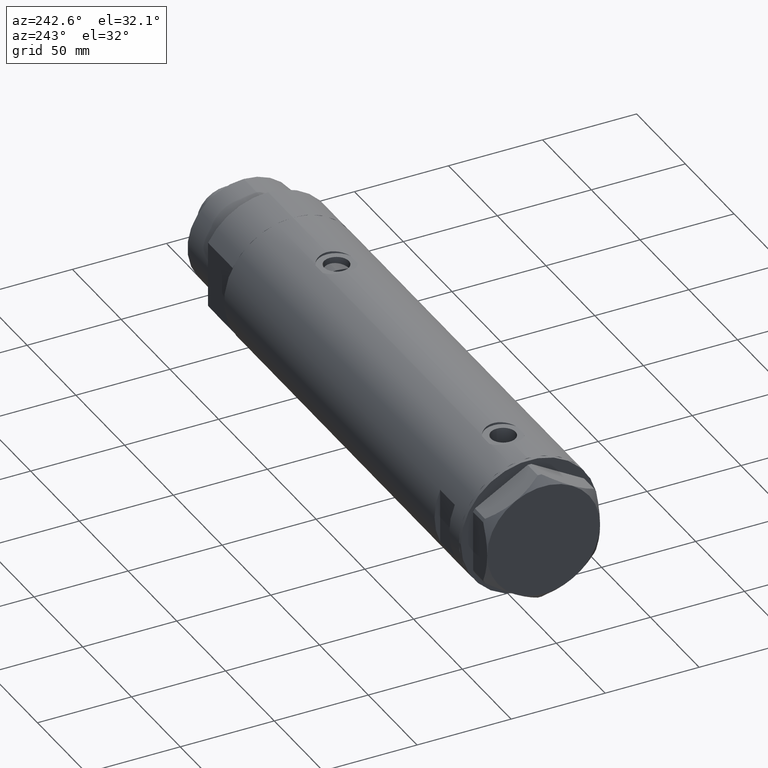
[diagram: clean part render]
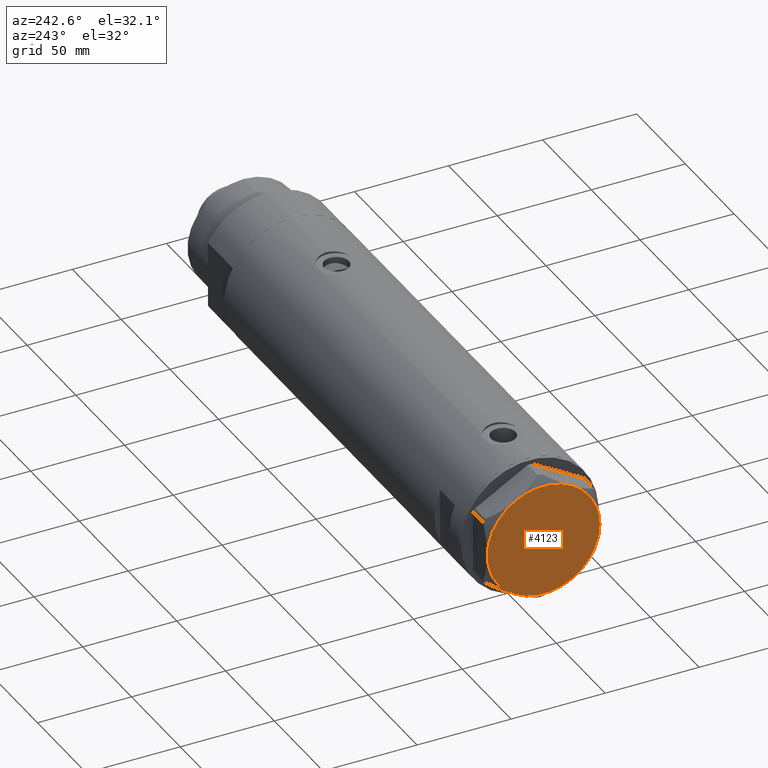
[diagram: same view with one face highlighted and labeled with its STEP entity id]
A machine part, auxiliary view. The second image highlights one B-rep face of the part: STEP entity #4123.
In plain terms, the highlighted planar face has unit normal (-1, -0, 0).
Its self-contained STEP definition (entity closure, byte-faithful):
#18 = CARTESIAN_POINT ( 'NONE',  ( 14.99999999999999467, 25.98076211353316367, 14.50000000000000000 ) ) ;
#37 = EDGE_CURVE ( 'NONE', #3228, #3449, #1792, .T. ) ;
#70 = AXIS2_PLACEMENT_3D ( 'NONE', #2125, #209, #416 ) ;
#190 = DIRECTION ( 'NONE',  ( 0.000000000000000000, 0.000000000000000000, 1.000000000000000000 ) ) ;
#209 = DIRECTION ( 'NONE',  ( 0.000000000000000000, 0.000000000000000000, 1.000000000000000000 ) ) ;
#416 = DIRECTION ( 'NONE',  ( 1.000000000000000000, 0.000000000000000000, 0.000000000000000000 ) ) ;
#419 = CARTESIAN_POINT ( 'NONE',  ( 0.000000000000000000, 0.000000000000000000, 14.50000000000000000 ) ) ;
#452 = CARTESIAN_POINT ( 'NONE',  ( 14.99999999999998757, -25.98076211353316722, 14.50000000000000000 ) ) ;
#499 = DIRECTION ( 'NONE',  ( 0.000000000000000000, 0.000000000000000000, 1.000000000000000000 ) ) ;
#518 = CARTESIAN_POINT ( 'NONE',  ( 0.000000000000000000, 0.000000000000000000, 14.50000000000000000 ) ) ;
#540 = DIRECTION ( 'NONE',  ( 1.000000000000000000, 0.000000000000000000, 0.000000000000000000 ) ) ;
#572 = CARTESIAN_POINT ( 'NONE',  ( 0.000000000000000000, 0.000000000000000000, 14.50000000000000000 ) ) ;
#675 = CARTESIAN_POINT ( 'NONE',  ( -14.99999999999999645, -25.98076211353316367, 14.50000000000000000 ) ) ;
#907 = DIRECTION ( 'NONE',  ( 1.000000000000000000, 0.000000000000000000, 0.000000000000000000 ) ) ;
#928 = CIRCLE ( 'NONE', #3250, 30.00000000000000000 ) ;
#989 = EDGE_LOOP ( 'NONE', ( #2636, #2047, #1542, #3466, #4019, #1296 ) ) ;
#1296 = ORIENTED_EDGE ( 'NONE', *, *, #3921, .T. ) ;
#1328 = VERTEX_POINT ( 'NONE', #4134 ) ;
#1451 = FACE_OUTER_BOUND ( 'NONE', #989, .T. ) ;
#1542 = ORIENTED_EDGE ( 'NONE', *, *, #37, .T. ) ;
#1735 = DIRECTION ( 'NONE',  ( 1.000000000000000000, 0.000000000000000000, 0.000000000000000000 ) ) ;
#1750 = DIRECTION ( 'NONE',  ( 1.000000000000000000, 0.000000000000000000, -0.000000000000000000 ) ) ;
#1792 = CIRCLE ( 'NONE', #4234, 30.00000000000000000 ) ;
#1919 = EDGE_CURVE ( 'NONE', #4265, #2450, #3025, .T. ) ;
#1943 = CIRCLE ( 'NONE', #2599, 30.00000000000000000 ) ;
#2047 = ORIENTED_EDGE ( 'NONE', *, *, #4007, .T. ) ;
#2125 = CARTESIAN_POINT ( 'NONE',  ( 0.000000000000000000, 0.000000000000000000, 14.50000000000000000 ) ) ;
#2341 = DIRECTION ( 'NONE',  ( 0.000000000000000000, 0.000000000000000000, 1.000000000000000000 ) ) ;
#2434 = DIRECTION ( 'NONE',  ( 0.000000000000000000, 0.000000000000000000, 1.000000000000000000 ) ) ;
#2448 = AXIS2_PLACEMENT_3D ( 'NONE', #572, #499, #907 ) ;
#2450 = VERTEX_POINT ( 'NONE', #675 ) ;
#2522 = CIRCLE ( 'NONE', #70, 30.00000000000000000 ) ;
#2535 = AXIS2_PLACEMENT_3D ( 'NONE', #419, #2434, #1750 ) ;
#2599 = AXIS2_PLACEMENT_3D ( 'NONE', #2663, #2341, #3732 ) ;
#2636 = ORIENTED_EDGE ( 'NONE', *, *, #3094, .T. ) ;
#2663 = CARTESIAN_POINT ( 'NONE',  ( 0.000000000000000000, 0.000000000000000000, 14.50000000000000000 ) ) ;
#2673 = DIRECTION ( 'NONE',  ( 0.000000000000000000, 0.000000000000000000, 1.000000000000000000 ) ) ;
#2763 = CARTESIAN_POINT ( 'NONE',  ( 0.000000000000000000, 0.000000000000000000, 14.50000000000000000 ) ) ;
#3025 = CIRCLE ( 'NONE', #2448, 30.00000000000000000 ) ;
#3094 = EDGE_CURVE ( 'NONE', #3284, #1328, #928, .T. ) ;
#3228 = VERTEX_POINT ( 'NONE', #18 ) ;
#3250 = AXIS2_PLACEMENT_3D ( 'NONE', #518, #2673, #540 ) ;
#3284 = VERTEX_POINT ( 'NONE', #452 ) ;
#3332 = AXIS2_PLACEMENT_3D ( 'NONE', #3665, #190, #3985 ) ;
#3449 = VERTEX_POINT ( 'NONE', #3523 ) ;
#3466 = ORIENTED_EDGE ( 'NONE', *, *, #3801, .T. ) ;
#3523 = CARTESIAN_POINT ( 'NONE',  ( -14.99999999999999645, 25.98076211353316367, 14.50000000000000000 ) ) ;
#3534 = CARTESIAN_POINT ( 'NONE',  ( -30.00000000000000000, 0.000000000000000000, 14.50000000000000000 ) ) ;
#3665 = CARTESIAN_POINT ( 'NONE',  ( 0.000000000000000000, 0.000000000000000000, 14.50000000000000000 ) ) ;
#3732 = DIRECTION ( 'NONE',  ( 1.000000000000000000, 0.000000000000000000, 0.000000000000000000 ) ) ;
#3801 = EDGE_CURVE ( 'NONE', #3449, #4265, #4122, .T. ) ;
#3879 = PLANE ( 'NONE',  #2535 ) ;
#3921 = EDGE_CURVE ( 'NONE', #2450, #3284, #2522, .T. ) ;
#3985 = DIRECTION ( 'NONE',  ( 1.000000000000000000, 0.000000000000000000, 0.000000000000000000 ) ) ;
#4007 = EDGE_CURVE ( 'NONE', #1328, #3228, #1943, .T. ) ;
#4019 = ORIENTED_EDGE ( 'NONE', *, *, #1919, .T. ) ;
#4122 = CIRCLE ( 'NONE', #3332, 30.00000000000000000 ) ;
#4123 = ADVANCED_FACE ( 'NONE', ( #1451 ), #3879, .T. ) ;
#4134 = CARTESIAN_POINT ( 'NONE',  ( 30.00000000000000000, 9.013887592422954582E-15, 14.50000000000000000 ) ) ;
#4156 = DIRECTION ( 'NONE',  ( 0.000000000000000000, 0.000000000000000000, 1.000000000000000000 ) ) ;
#4234 = AXIS2_PLACEMENT_3D ( 'NONE', #2763, #4156, #1735 ) ;
#4265 = VERTEX_POINT ( 'NONE', #3534 ) ;